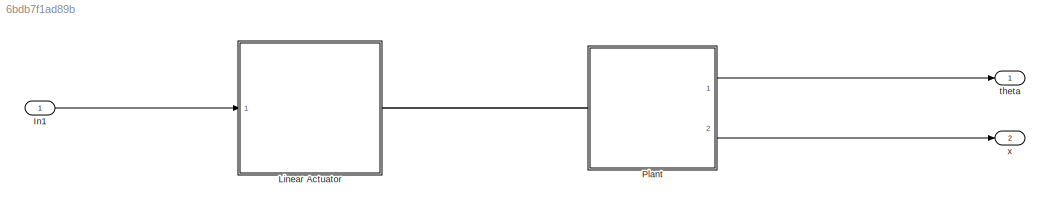
MODEL slx_6bdb7f1ad89b
KIND model
CONFIG AbsTol = auto
CONFIG FixedStep = auto
CONFIG MaxStep = 1e-3
CONFIG MinStep = auto
CONFIG RelTol = 1e-3
CONFIG SampleTimeConstraint = Unconstrained
CONFIG Solver = ode15s
CONFIG SolverMode = Auto
CONFIG SolverName = ode15s
CONFIG StartTime = 0.0
CONFIG StopTime = 12.00
WORKSPACE source: MATLAB code (in-file)
WORKSPACE mCart = 1
WORKSPACE mPend = 1
WORKSPACE g = 9.81
WORKSPACE L = 0.5
WORKSPACE theta0 = 0
WORKSPACE Kd = 10
BLOCK [Inport] In1
  IconDisplay = Port number
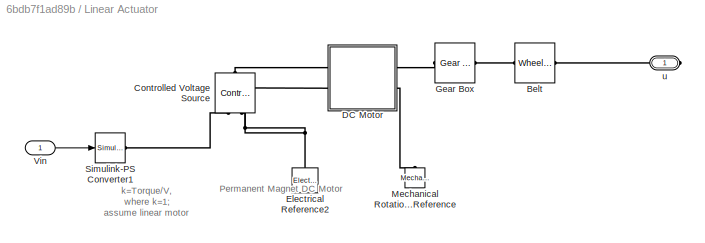
BLOCK [SubSystem] Linear Actuator
  Ports = [1, 0, 0, 0, 0, 0, 1]
  RequestExecContextInheritance = off
  Variant = off
BLOCK [Reference] Linear Actuator/Belt  REF=fl_lib/Mechanical/Mechanisms/Wheel and Axle
  Ports = [0, 0, 0, 0, 0, 1, 1]
  SourceBlock = fl_lib/Mechanical/Mechanisms/Wheel and Axle
  SourceType = Wheel and Axle
BLOCK [Reference] Linear Actuator/Controlled Voltage Source  REF=fl_lib/Electrical/Electrical Sources/Controlled Voltage
Source
  Ports = [0, 0, 0, 0, 0, 1, 2]
  SourceBlock = fl_lib/Electrical/Electrical Sources/Controlled Voltage\nSource
  SourceType = Controlled Voltage\nSource
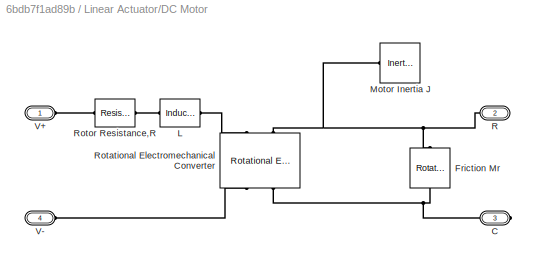
BLOCK [SubSystem] Linear Actuator/DC Motor
  Ports = [0, 0, 0, 0, 0, 2, 2]
  RequestExecContextInheritance = off
  Variant = off
BLOCK [PMIOPort] Linear Actuator/DC Motor/C
  Port = 3
  Side = Right
BLOCK [Reference] Linear Actuator/DC Motor/Friction Mr  REF=fl_lib/Mechanical/Rotational Elements/Rotational Friction
  Ports = [0, 0, 0, 0, 0, 1, 1]
  SourceBlock = fl_lib/Mechanical/Rotational Elements/Rotational Friction
  SourceType = Rotational Friction
BLOCK [Reference] Linear Actuator/DC Motor/L  REF=fl_lib/Electrical/Electrical Elements/Inductor
  Ports = [0, 0, 0, 0, 0, 1, 1]
  SourceBlock = fl_lib/Electrical/Electrical Elements/Inductor
  SourceType = Inductor
BLOCK [Reference] Linear Actuator/DC Motor/Motor Inertia J  REF=fl_lib/Mechanical/Rotational Elements/Inertia
  Ports = [0, 0, 0, 0, 0, 1]
  SourceBlock = fl_lib/Mechanical/Rotational Elements/Inertia
  SourceType = Inertia
BLOCK [PMIOPort] Linear Actuator/DC Motor/R
  Port = 2
  Side = Right
BLOCK [Reference] Linear Actuator/DC Motor/Rotational Electromechanical Converter  REF=fl_lib/Electrical/Electrical Elements/Rotational
Electromechanical
Converter
  Ports = [0, 0, 0, 0, 0, 2, 2]
  SourceBlock = fl_lib/Electrical/Electrical Elements/Rotational\nElectromechanical\nConverter
  SourceType = Rotational\nElectromechanical\nConverter
BLOCK [Reference] Linear Actuator/DC Motor/Rotor Resistance,R  REF=fl_lib/Electrical/Electrical Elements/Resistor
  Ports = [0, 0, 0, 0, 0, 1, 1]
  SourceBlock = fl_lib/Electrical/Electrical Elements/Resistor
  SourceType = Resistor
  Tag = Factory Generic
BLOCK [PMIOPort] Linear Actuator/DC Motor/V+
  Port = 1
  Side = Left
BLOCK [PMIOPort] Linear Actuator/DC Motor/V-
  Port = 4
  Side = Left
BLOCK [Reference] Linear Actuator/Electrical Reference2  REF=fl_lib/Electrical/Electrical Elements/Electrical Reference
  Ports = [0, 0, 0, 0, 0, 1]
  SourceBlock = fl_lib/Electrical/Electrical Elements/Electrical Reference
  SourceType = Electrical Reference
BLOCK [Reference] Linear Actuator/Gear Box  REF=fl_lib/Mechanical/Mechanisms/Gear Box
  Ports = [0, 0, 0, 0, 0, 1, 1]
  SourceBlock = fl_lib/Mechanical/Mechanisms/Gear Box
  SourceType = Gear Box
BLOCK [Reference] Linear Actuator/Mechanical Rotational Reference  REF=fl_lib/Mechanical/Rotational Elements/Mechanical
Rotational Reference
  Ports = [0, 0, 0, 0, 0, 1]
  SourceBlock = fl_lib/Mechanical/Rotational Elements/Mechanical\nRotational Reference
  SourceType = Mechanical\nRotational Reference
BLOCK [Reference] Linear Actuator/Simulink-PS Converter1  REF=nesl_utility/Simulink-PS
Converter
  Ports = [1, 0, 0, 0, 0, 0, 1]
  SourceBlock = nesl_utility/Simulink-PS\nConverter
  SourceType = Simulink-PS\nConverter
BLOCK [Inport] Linear Actuator/Vin
  IconDisplay = Port number
BLOCK [PMIOPort] Linear Actuator/u
  Port = 1
  Side = Right
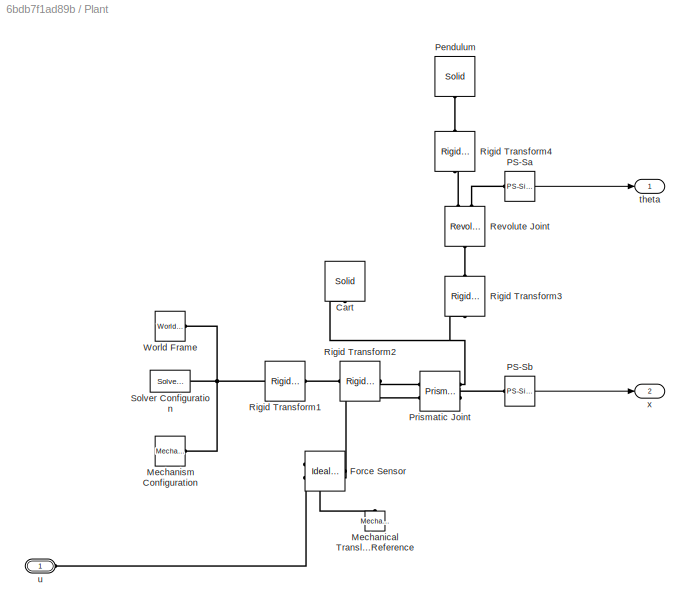
BLOCK [SubSystem] Plant
  Ports = [0, 2, 0, 0, 0, 1]
  RequestExecContextInheritance = off
  Variant = off
BLOCK [Reference] Plant/Cart  REF=sm_lib/Body Elements/Solid
  Ports = [0, 0, 0, 0, 0, 0, 1]
  SourceBlock = sm_lib/Body Elements/Solid
  SourceType = Solid
BLOCK [Reference] Plant/Force Sensor  REF=fl_lib/Mechanical/Mechanical Sensors/Ideal Force Sensor
  Ports = [0, 0, 0, 0, 0, 1, 2]
  SourceBlock = fl_lib/Mechanical/Mechanical Sensors/Ideal Force Sensor
  SourceType = Ideal Force Sensor
BLOCK [Reference] Plant/Mechanical Translational Reference  REF=fl_lib/Mechanical/Translational
Elements/Mechanical
Translational
Reference
  Ports = [0, 0, 0, 0, 0, 1]
  SourceBlock = fl_lib/Mechanical/Translational\nElements/Mechanical\nTranslational\nReference
  SourceType = Mechanical\nTranslational\nReference
BLOCK [Reference] Plant/Mechanism Configuration  REF=sm_lib/Utilities/Mechanism
Configuration
  Ports = [0, 0, 0, 0, 0, 0, 1]
  SourceBlock = sm_lib/Utilities/Mechanism\nConfiguration
  SourceType = Mechanism\nConfiguration
BLOCK [Reference] Plant/PS-Sa  REF=nesl_utility/PS-Simulink
Converter
  Ports = [0, 1, 0, 0, 0, 1]
  SourceBlock = nesl_utility/PS-Simulink\nConverter
  SourceType = PS-Simulink\nConverter
BLOCK [Reference] Plant/PS-Sb  REF=nesl_utility/PS-Simulink
Converter
  Ports = [0, 1, 0, 0, 0, 1]
  SourceBlock = nesl_utility/PS-Simulink\nConverter
  SourceType = PS-Simulink\nConverter
BLOCK [Reference] Plant/Pendulum  REF=sm_lib/Body Elements/Solid
  Ports = [0, 0, 0, 0, 0, 0, 1]
  SourceBlock = sm_lib/Body Elements/Solid
  SourceType = Solid
BLOCK [Reference] Plant/Prismatic Joint  REF=sm_lib/Joints/Prismatic
Joint
  Ports = [0, 0, 0, 0, 0, 2, 2]
  SourceBlock = sm_lib/Joints/Prismatic\nJoint
  SourceType = Prismatic\nJoint
BLOCK [Reference] Plant/Revolute Joint  REF=sm_lib/Joints/Revolute Joint
  Ports = [0, 0, 0, 0, 0, 1, 2]
  SourceBlock = sm_lib/Joints/Revolute Joint
  SourceType = Revolute Joint
BLOCK [Reference] Plant/Rigid Transform1  REF=sm_lib/Frames and
Transforms/Rigid
Transform
  Ports = [0, 0, 0, 0, 0, 1, 1]
  SourceBlock = sm_lib/Frames and\nTransforms/Rigid\nTransform
  SourceType = Rigid\nTransform
BLOCK [Reference] Plant/Rigid Transform2  REF=sm_lib/Frames and
Transforms/Rigid
Transform
  Ports = [0, 0, 0, 0, 0, 1, 1]
  SourceBlock = sm_lib/Frames and\nTransforms/Rigid\nTransform
  SourceType = Rigid\nTransform
BLOCK [Reference] Plant/Rigid Transform3  REF=sm_lib/Frames and
Transforms/Rigid
Transform
  Ports = [0, 0, 0, 0, 0, 1, 1]
  SourceBlock = sm_lib/Frames and\nTransforms/Rigid\nTransform
  SourceType = Rigid\nTransform
BLOCK [Reference] Plant/Rigid Transform4  REF=sm_lib/Frames and
Transforms/Rigid
Transform
  Ports = [0, 0, 0, 0, 0, 1, 1]
  SourceBlock = sm_lib/Frames and\nTransforms/Rigid\nTransform
  SourceType = Rigid\nTransform
BLOCK [Reference] Plant/Solver Configuration  REF=nesl_utility/Solver
Configuration
  Ports = [0, 0, 0, 0, 0, 0, 1]
  SourceBlock = nesl_utility/Solver\nConfiguration
  SourceType = Solver\nConfiguration
BLOCK [Reference] Plant/World Frame  REF=sm_lib/Frames and
Transforms/World Frame
  Ports = [0, 0, 0, 0, 0, 0, 1]
  SourceBlock = sm_lib/Frames and\nTransforms/World Frame
  SourceType = World Frame
BLOCK [Outport] Plant/theta
  IconDisplay = Port number
BLOCK [PMIOPort] Plant/u
  Port = 1
  Side = Left
BLOCK [Outport] Plant/x
  IconDisplay = Port number
  Port = 2
BLOCK [Outport] theta
  IconDisplay = Port number
BLOCK [Outport] x
  IconDisplay = Port number
  Port = 2
ANNOTATION Linear Actuator: Permanent Magnet DC Motor
ANNOTATION Linear Actuator: k=Torque/V, where k=1; assume linear motor
LINE In1:1 -> Linear Actuator:1
LINE Linear Actuator/Vin:1 -> Linear Actuator/Simulink-PS Converter1:1
LINE Plant/PS-Sa:1 -> Plant/theta:1
LINE Plant/PS-Sb:1 -> Plant/x:1
LINE Plant:1 -> theta:1
LINE Plant:2 -> x:1
PLINE Linear Actuator/Belt:LConn1 -- Linear Actuator/Gear Box:RConn1
PLINE Linear Actuator/Belt:RConn1 -- Linear Actuator/u:RConn1
PLINE Linear Actuator/Controlled Voltage Source:LConn1 -- Linear Actuator/DC Motor:LConn1
PLINE Linear Actuator/Controlled Voltage Source:RConn1 -- Linear Actuator/Simulink-PS Converter1:RConn1
PNET net1: Linear Actuator/Controlled Voltage Source:RConn2 -- Linear Actuator/DC Motor:LConn2 -- Linear Actuator/Electrical Reference2:LConn1
PNET net2: Linear Actuator/DC Motor/C:RConn1 -- Linear Actuator/DC Motor/Friction Mr:RConn1 -- Linear Actuator/DC Motor/Rotational Electromechanical Converter:RConn2
PNET net3: Linear Actuator/DC Motor/Friction Mr:LConn1 -- Linear Actuator/DC Motor/Motor Inertia J:LConn1 -- Linear Actuator/DC Motor/R:RConn1 -- Linear Actuator/DC Motor/Rotational Electromechanical Converter:LConn2
PLINE Linear Actuator/DC Motor/L:LConn1 -- Linear Actuator/DC Motor/Rotor Resistance,R:RConn1
PLINE Linear Actuator/DC Motor/L:RConn1 -- Linear Actuator/DC Motor/Rotational Electromechanical Converter:LConn1
PLINE Linear Actuator/DC Motor/Rotational Electromechanical Converter:RConn1 -- Linear Actuator/DC Motor/V-:RConn1
PLINE Linear Actuator/DC Motor/Rotor Resistance,R:LConn1 -- Linear Actuator/DC Motor/V+:RConn1
PLINE Linear Actuator/DC Motor:RConn1 -- Linear Actuator/Gear Box:LConn1
PLINE Linear Actuator/DC Motor:RConn2 -- Linear Actuator/Mechanical Rotational Reference:LConn1
PLINE Linear Actuator:RConn1 -- Plant:LConn1
PNET net4: Plant/Cart:RConn1 -- Plant/Prismatic Joint:RConn1 -- Plant/Rigid Transform3:LConn1
PLINE Plant/Force Sensor:LConn1 -- Plant/u:RConn1
PLINE Plant/Force Sensor:RConn1 -- Plant/Mechanical Translational Reference:LConn1
PLINE Plant/Force Sensor:RConn2 -- Plant/Prismatic Joint:LConn2
PNET net5: Plant/Mechanism Configuration:RConn1 -- Plant/Rigid Transform1:LConn1 -- Plant/Solver Configuration:RConn1 -- Plant/World Frame:RConn1
PLINE Plant/PS-Sa:LConn1 -- Plant/Revolute Joint:RConn2
PLINE Plant/PS-Sb:LConn1 -- Plant/Prismatic Joint:RConn2
PLINE Plant/Pendulum:RConn1 -- Plant/Rigid Transform4:RConn1
PLINE Plant/Prismatic Joint:LConn1 -- Plant/Rigid Transform2:RConn1
PLINE Plant/Revolute Joint:LConn1 -- Plant/Rigid Transform3:RConn1
PLINE Plant/Revolute Joint:RConn1 -- Plant/Rigid Transform4:LConn1
PLINE Plant/Rigid Transform1:RConn1 -- Plant/Rigid Transform2:LConn1
note: PNET lines group multi-terminal physical nets as a canonical sorted terminal list (undirected conserving connections); 2-terminal nets keep the pairwise PLINE form
